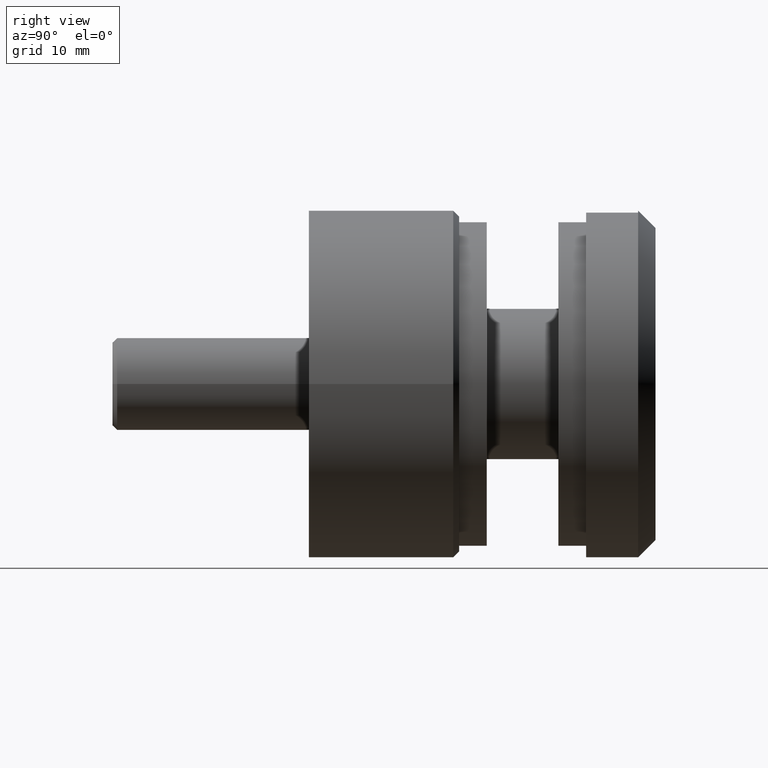
[diagram: clean part render]
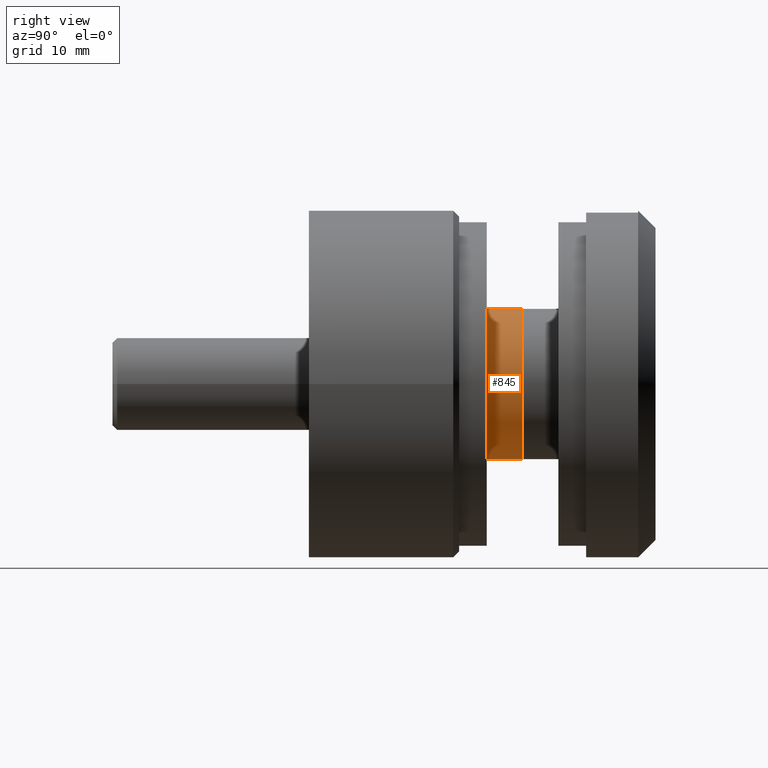
[diagram: same view with one face highlighted and labeled with its STEP entity id]
A machine part, right view. The second image highlights one B-rep face of the part: STEP entity #845.
In plain terms, the highlighted cylindrical surface (partial cylindrical patch) has radius 6.5 mm, axis along (-0, -1, -0).
Its self-contained STEP definition (entity closure, byte-faithful):
#166 = FACE_OUTER_BOUND ( 'NONE', #6911, .T. ) ;
#624 = AXIS2_PLACEMENT_3D ( 'NONE', #9593, #7395, #5082 ) ;
#687 = DIRECTION ( 'NONE',  ( -0.000000000000000000, -1.000000000000000000, -0.000000000000000000 ) ) ;
#845 = ADVANCED_FACE ( 'NONE', ( #166 ), #4562, .T. ) ;
#1760 = CARTESIAN_POINT ( 'NONE',  ( 7.960204194457796463E-16, 2.399999999999999023, 6.500000000000000888 ) ) ;
#2719 = CIRCLE ( 'NONE', #624, 6.500000000000000000 ) ;
#3176 = CARTESIAN_POINT ( 'NONE',  ( 0.000000000000000000, 2.399999999999999023, -6.500000000000000000 ) ) ;
#3473 = VERTEX_POINT ( 'NONE', #1760 ) ;
#3761 = ORIENTED_EDGE ( 'NONE', *, *, #13270, .T. ) ;
#4418 = DIRECTION ( 'NONE',  ( 0.000000000000000000, 0.000000000000000000, -1.000000000000000000 ) ) ;
#4562 = CYLINDRICAL_SURFACE ( 'NONE', #11573, 6.499999999999999112 ) ;
#4914 = EDGE_CURVE ( 'NONE', #6348, #3473, #9635, .T. ) ;
#4966 = VECTOR ( 'NONE', #11952, 1000.000000000000000 ) ;
#5082 = DIRECTION ( 'NONE',  ( 0.000000000000000000, 0.000000000000000000, -1.000000000000000000 ) ) ;
#5133 = LINE ( 'NONE', #6301, #4966 ) ;
#5235 = VECTOR ( 'NONE', #14207, 1000.000000000000000 ) ;
#5482 = CARTESIAN_POINT ( 'NONE',  ( 7.960204194457794491E-16, 5.500000000000000000, 6.499999999999999112 ) ) ;
#5596 = CARTESIAN_POINT ( 'NONE',  ( 0.000000000000000000, 5.500000000000000000, 0.000000000000000000 ) ) ;
#5614 = AXIS2_PLACEMENT_3D ( 'NONE', #5596, #13299, #4418 ) ;
#5950 = VERTEX_POINT ( 'NONE', #3176 ) ;
#6050 = CIRCLE ( 'NONE', #5614, 6.499999999999999112 ) ;
#6301 = CARTESIAN_POINT ( 'NONE',  ( 0.000000000000000000, 0.000000000000000000, -6.499999999999999112 ) ) ;
#6348 = VERTEX_POINT ( 'NONE', #5482 ) ;
#6911 = EDGE_LOOP ( 'NONE', ( #3761, #11847, #13167, #10893 ) ) ;
#7395 = DIRECTION ( 'NONE',  ( -0.000000000000000000, -1.000000000000000000, -0.000000000000000000 ) ) ;
#8211 = EDGE_CURVE ( 'NONE', #11301, #5950, #5133, .T. ) ;
#9269 = CARTESIAN_POINT ( 'NONE',  ( 0.000000000000000000, 5.500000000000000000, -6.499999999999999112 ) ) ;
#9523 = CARTESIAN_POINT ( 'NONE',  ( 0.000000000000000000, 0.000000000000000000, 0.000000000000000000 ) ) ;
#9593 = CARTESIAN_POINT ( 'NONE',  ( 0.000000000000000000, 2.399999999999999023, 0.000000000000000000 ) ) ;
#9635 = LINE ( 'NONE', #14044, #5235 ) ;
#10893 = ORIENTED_EDGE ( 'NONE', *, *, #8211, .F. ) ;
#11301 = VERTEX_POINT ( 'NONE', #9269 ) ;
#11573 = AXIS2_PLACEMENT_3D ( 'NONE', #9523, #687, #13004 ) ;
#11847 = ORIENTED_EDGE ( 'NONE', *, *, #4914, .T. ) ;
#11952 = DIRECTION ( 'NONE',  ( -0.000000000000000000, -1.000000000000000000, -0.000000000000000000 ) ) ;
#12360 = EDGE_CURVE ( 'NONE', #5950, #3473, #2719, .T. ) ;
#13004 = DIRECTION ( 'NONE',  ( 0.000000000000000000, 0.000000000000000000, -1.000000000000000000 ) ) ;
#13167 = ORIENTED_EDGE ( 'NONE', *, *, #12360, .F. ) ;
#13270 = EDGE_CURVE ( 'NONE', #11301, #6348, #6050, .T. ) ;
#13299 = DIRECTION ( 'NONE',  ( -0.000000000000000000, -1.000000000000000000, -0.000000000000000000 ) ) ;
#14044 = CARTESIAN_POINT ( 'NONE',  ( 7.960204194457794491E-16, 0.000000000000000000, 6.499999999999999112 ) ) ;
#14207 = DIRECTION ( 'NONE',  ( -0.000000000000000000, -1.000000000000000000, -0.000000000000000000 ) ) ;